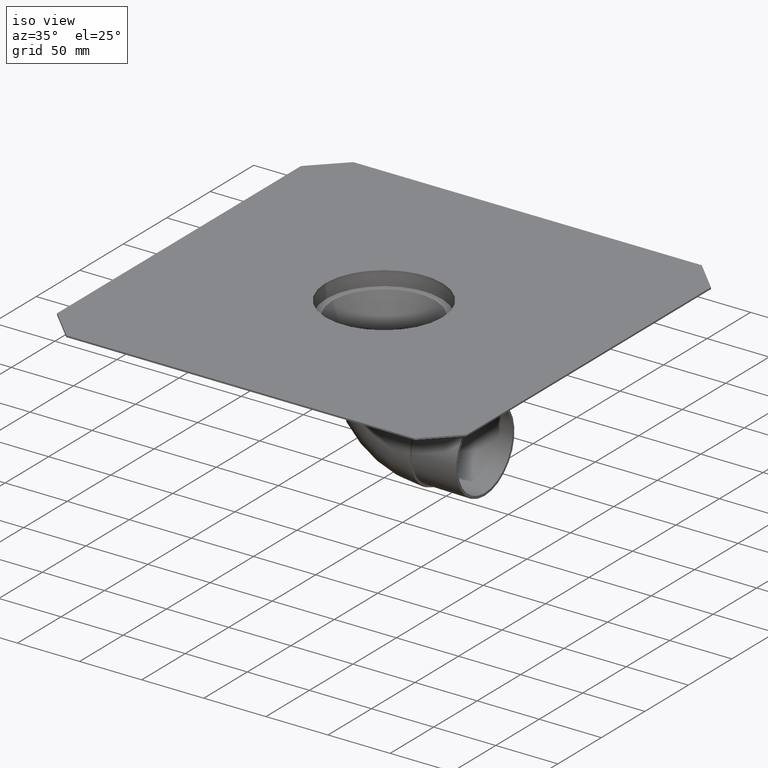
[diagram: clean part render]
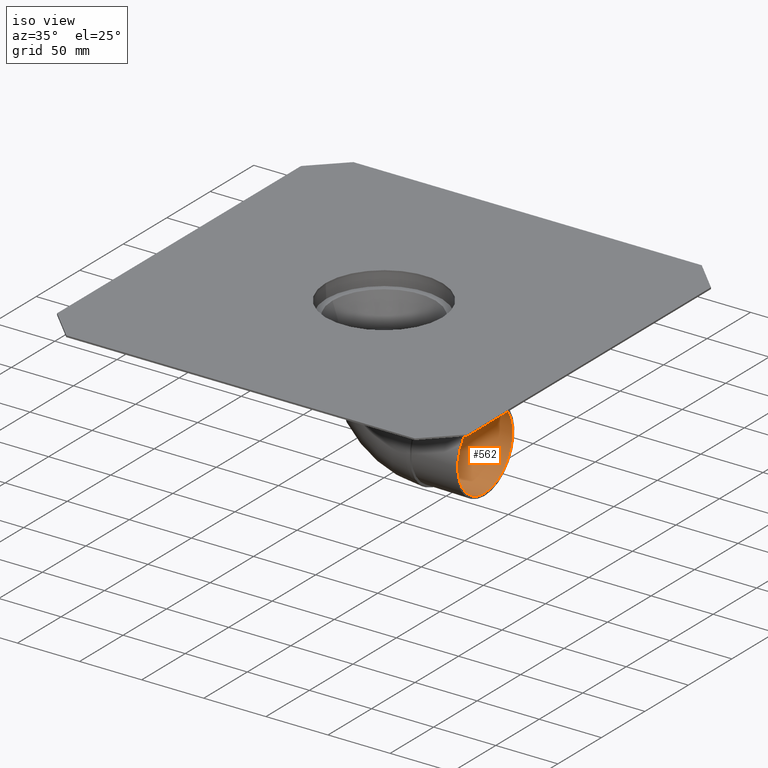
[diagram: same view with one face highlighted and labeled with its STEP entity id]
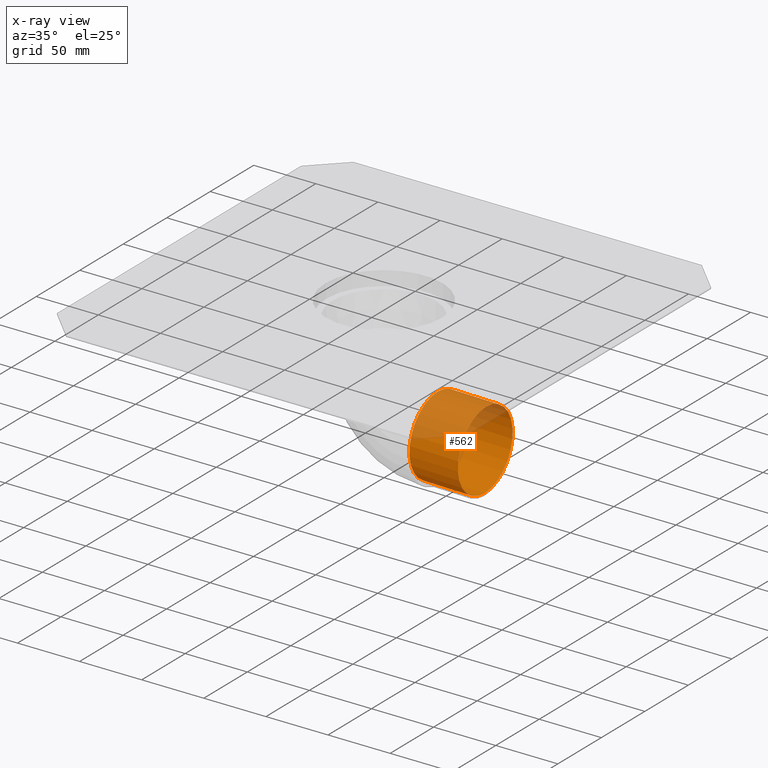
[diagram: x-ray of the same camera — body ghosted, the highlighted face saturated]
A machine part, iso view. The second image highlights one B-rep face of the part: STEP entity #562.
The next image is the same camera in x-ray: the body ghosted, the highlighted face saturated — about 37% of this face is hidden behind the body in this view.
In plain terms, the highlighted cylindrical surface (bore or boss wall) has radius 31.5 mm, axis along (-0.9998, 0, 0.0175).
Its self-contained STEP definition (entity closure, byte-faithful):
#61=CIRCLE('',#647,31.5);
#62=CIRCLE('',#649,31.5);
#73=CYLINDRICAL_SURFACE('',#648,31.5);
#173=ORIENTED_EDGE('',*,*,#245,.T.);
#174=ORIENTED_EDGE('',*,*,#246,.F.);
#245=EDGE_CURVE('',#295,#295,#61,.T.);
#246=EDGE_CURVE('',#296,#296,#62,.T.);
#295=VERTEX_POINT('',#975);
#296=VERTEX_POINT('',#978);
#414=EDGE_LOOP('',(#173));
#415=EDGE_LOOP('',(#174));
#492=FACE_BOUND('',#414,.T.);
#493=FACE_BOUND('',#415,.T.);
#562=ADVANCED_FACE('',(#492,#493),#73,.F.);
#647=AXIS2_PLACEMENT_3D('',#974,#816,#817);
#648=AXIS2_PLACEMENT_3D('',#976,#818,#819);
#649=AXIS2_PLACEMENT_3D('',#977,#820,#821);
#816=DIRECTION('',(-0.999847695156391,0.,0.0174524064372835));
#817=DIRECTION('',(0.0174524064372835,0.,0.999847695156391));
#818=DIRECTION('',(-0.999847695156391,0.,0.0174524064372835));
#819=DIRECTION('',(0.0174524064372835,0.,0.999847695156391));
#820=DIRECTION('',(-0.999847695156391,0.,0.0174524064372835));
#821=DIRECTION('',(0.0174524064372835,0.,0.999847695156391));
#974=CARTESIAN_POINT('',(42.4951834215875,0.,-85.2434128155139));
#975=CARTESIAN_POINT('',(43.0449342243619,0.,-53.7482104180876));
#976=CARTESIAN_POINT('',(42.4951834215875,0.,-85.2434128155139));
#977=CARTESIAN_POINT('',(81.4892435326867,0.,-85.924056666568));
#978=CARTESIAN_POINT('',(82.0389943354612,0.,-54.4288542691416));